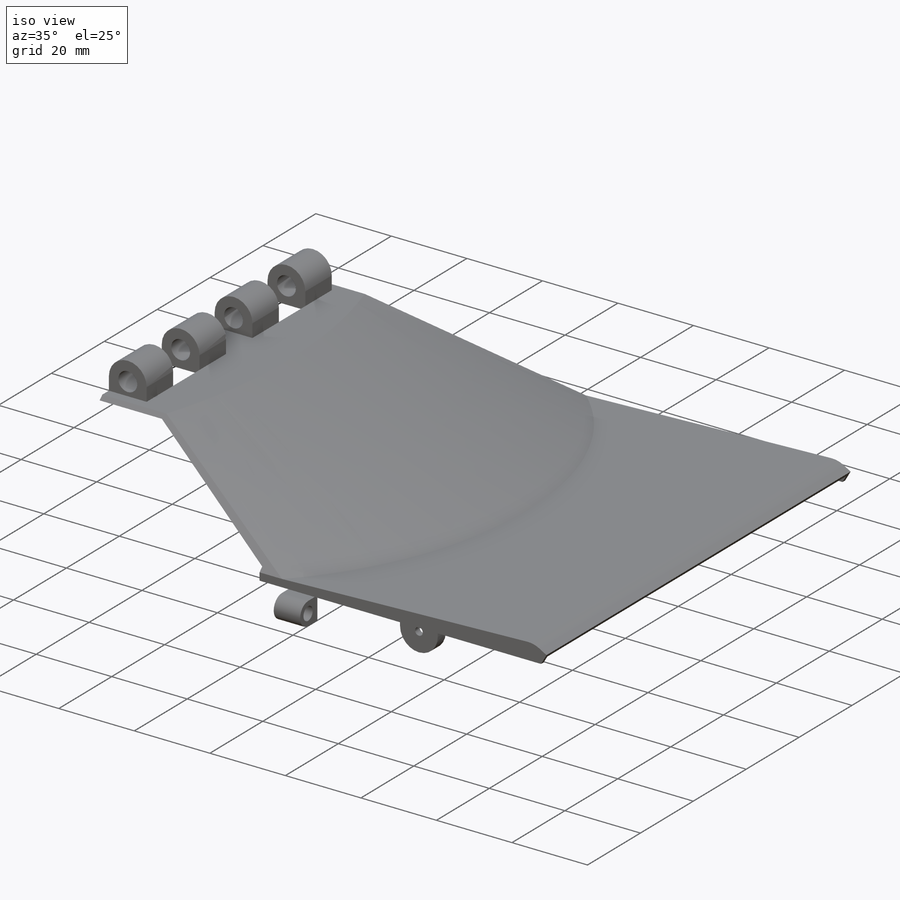
[diagram: iso view]
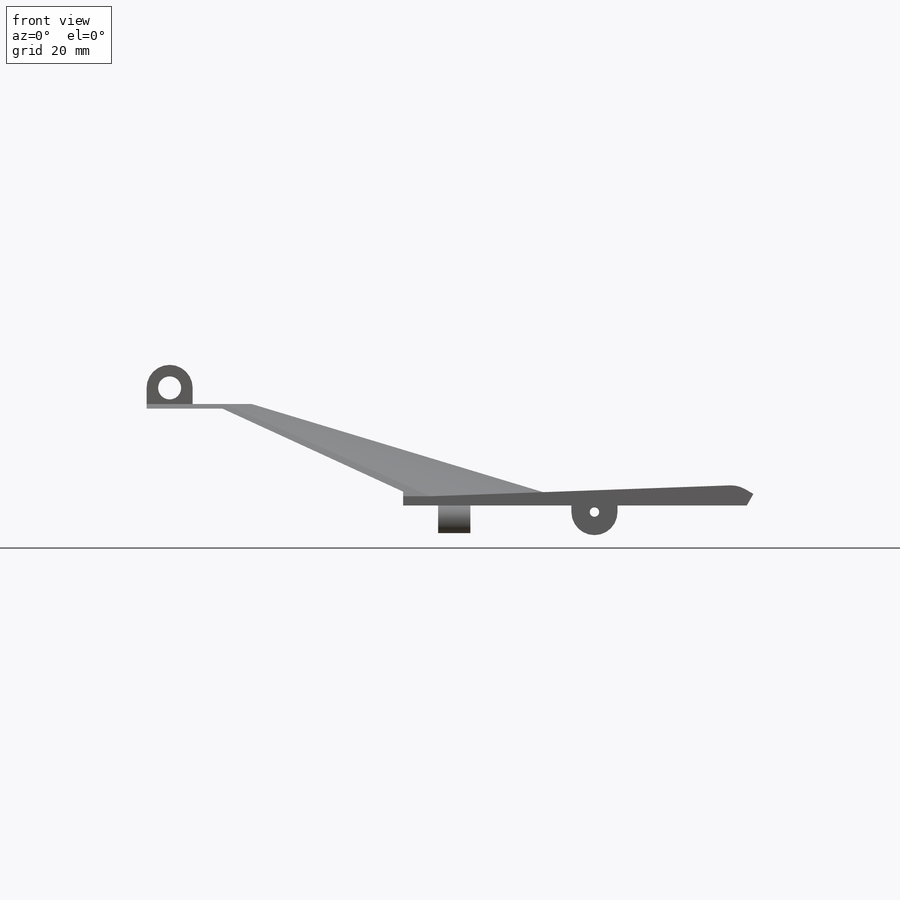
[diagram: front view]
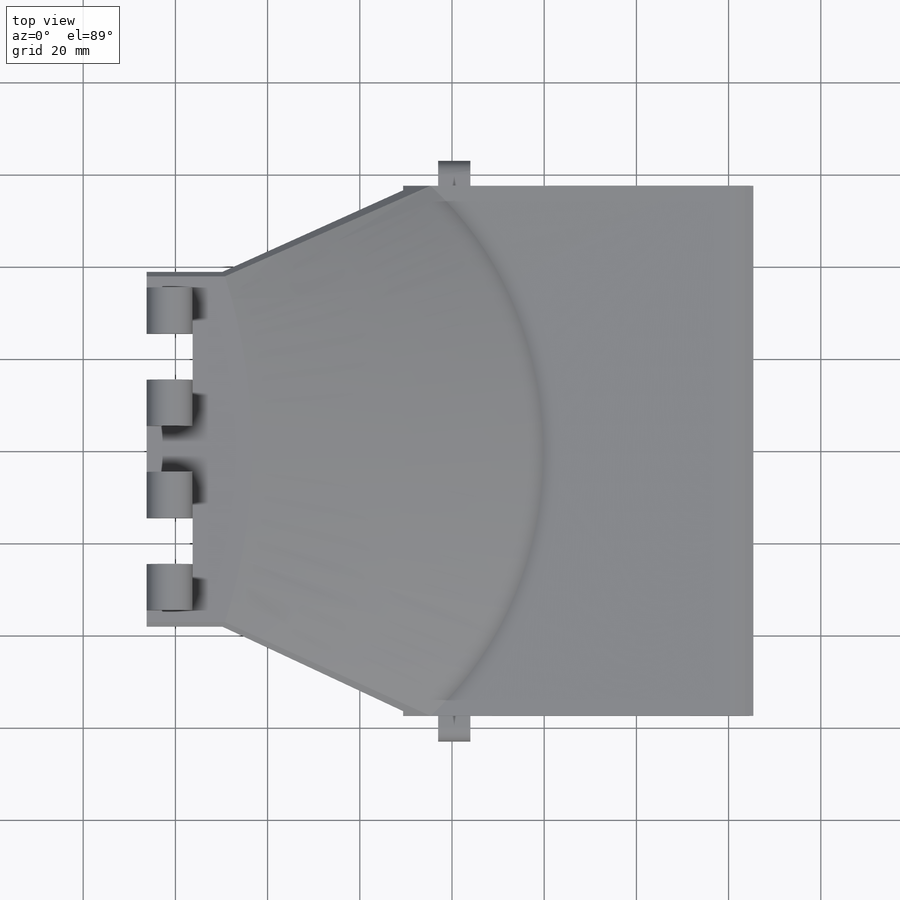
[diagram: top view]
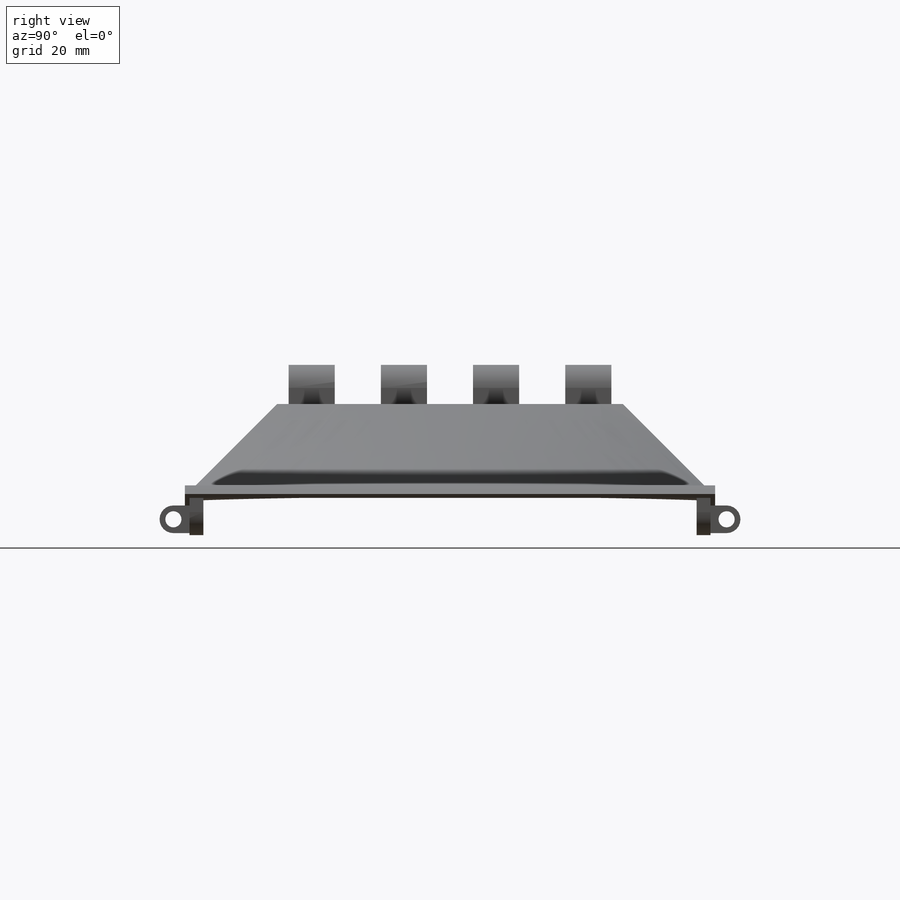
[diagram: right view]
SOLIDWORKS PART (.sldprt)
format: sldprt  version: not decoded by parser v0  size: 663,040 bytes
history: native  units: mm
features: sketch x14, extrude x5, cut_extrude x4, mirror x4, plane x3, pattern_linear x2, material x1, shell x1, chamfer x1, hole x1 (+13 scaffold rows collapsed)
feature tree (49):
  scaffold x13  (default folders/planes/origin — collapsed)
  material  "Material <not specified>"
  sketch  "Sketch1"  dims[c1.D3=222.0mm c1.D1=132.5mm c1.D2=115.0mm c1.D4=20.0mm c1.D5=30.0mm c2.D4=100.0mm c2.D3=60.0mm c2.D1=132.5mm]
  extrude  "Boss-Extrude1"  Depth=2mm
  sketch  "Sketch2"  dims[c1.D1=74.0mm c1.D2=78.0mm c1.D3=78.0mm c2.D3=6.0deg c2.D4=3.5mm c2.D2=15.0mm]
  plane  "Plane1"  Offset=20mm
  sketch  "Sketch3"  dims[c1.D2=110.0mm c1.D3=110.0mm c1.D1=123.0mm c1.D4=123.0mm c2.D3=88.0mm c2.D1=8.0mm c2.D4=65.0mm c3.D1=80.0mm c3.D2=20.0mm c3.D3=20.0mm c3.D4=17.0mm c4.D1=20.0mm]
  sketch  "Sketch4"  dims[c1.D3=6.0mm c1.D1=~8.914268mm c2.D1=30.0deg c2.D2=3.5mm c2.D3=78.0mm c3.D2=7.0mm c3.D3=50.0mm c3.D4=7.0mm c3.D5=3.5mm c3.D6=3.5mm c4.D5=3.5mm c4.D6=3.5mm c5.D5=3.5mm c5.D6=3.5mm c6.D5=3.5mm c6.D6=3.5mm c7.D5=3.5mm c7.D6=3.5mm c8.D5=3.5mm c8.D6=3.5mm c9.D5=3.5mm c9.D6=3.5mm c10.D5=3.5mm c10.D6=3.5mm c11.D5=3.5mm c11.D6=3.5mm c12.D5=3.5mm c12.D6=~10.808469mm c12.D2=65.0mm c12.D3=~5.919425mm]
  extrude  "Boss-Extrude2"  [1 undecoded]
  shell  "Shell1"  Thickness=1mm
  sketch  "Sketch5"  dims[c1.D3=5.0mm c1.D2=5.0mm c1.D1=7.8mm c2.D2=38.2mm c2.D1=7.8mm c3.D2=38.2mm c3.D1=38.2mm c4.D2=10.5mm c4.D1=4.91mm c5.D2=35.35mm]
  extrude  "Boss-Extrude3"  Depth=3mm
  sketch  "Sketch6"  dims[D1=4.0mm]
  sketch  "Sketch19"
  cut_extrude  "Cut-Extrude9"  Depth=1mm
  mirror  "Mirror3"
  plane  "Plane2"  Offset=4mm
  sketch  "Sketch20"  dims[D1=3.0mm D2=3.5mm]
  extrude  "Boss-Extrude5"  Depth=7mm
  sketch  "Sketch23"  dims[D1=3.5mm]
  cut_extrude  "Cut-Extrude11"  [1 undecoded]
  plane  "Plane3"  Offset=30mm
  sketch  "Sketch24"  dims[D1=5.0mm D2=3.5mm]
  extrude  "Boss-Extrude6"  Depth=10mm
  sketch  "Sketch25"  dims[D1=5.0mm]
  cut_extrude  "Cut-Extrude12"  [1 undecoded]
  pattern_linear  "LPattern1"  Count1=2 Count2=1 Spacing1=20mm Spacing2=10mm
  mirror  "Mirror5"
  mirror  "Mirror6"
  chamfer  "Chamfer1"  Distance=4mm Angle=30deg
  sketch  "Sketch26"
  cut_extrude  "Cut-Extrude14"  [1 undecoded]
  pattern_linear  "LPattern2"  Count1=3 Count2=1 Spacing1=20mm Spacing2=10mm
  hole  "CBORE for #1 Binding Head Machine Screw2"  Diameter=2.032mm Depth=9.5mm
  sketch  "Sketch30"
  sketch  "Sketch29"  dims[hole-wizard template sketch: 41 standard entries collapsed; hole parameters kept: c12.Thru Hole Dia.=2.032mm c12.Thru Hole Depth=9.5mm c12.C'Bore Dia.=5.08mm c12.C'Bore Depth=1.27mm c12.Near C'Sink Dia.=6.0325mm c12.D6=~4.399409mm c12.Near C'Sink Angle=90.0deg]
  mirror  "Mirror8"
decode coverage: 21 of 32 modeling features carry decoded parameters
note: ~ marks probable driven/reference dimensions
note: 4 parameter values undecoded
summary: no parameter record found for 4 features
note: suppression state not decoded; provenance and decode notes live in map.json
